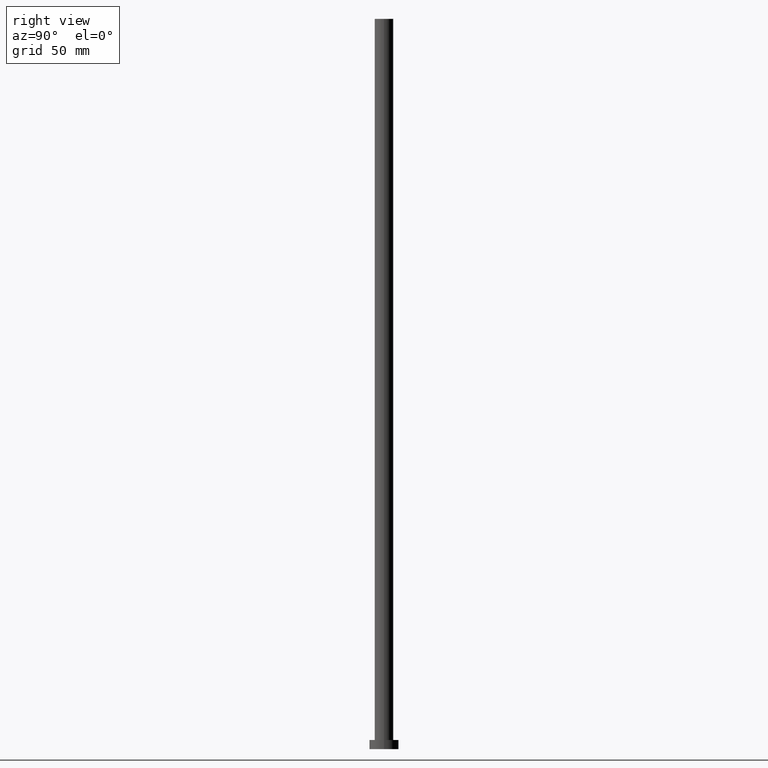
[diagram: clean part render]
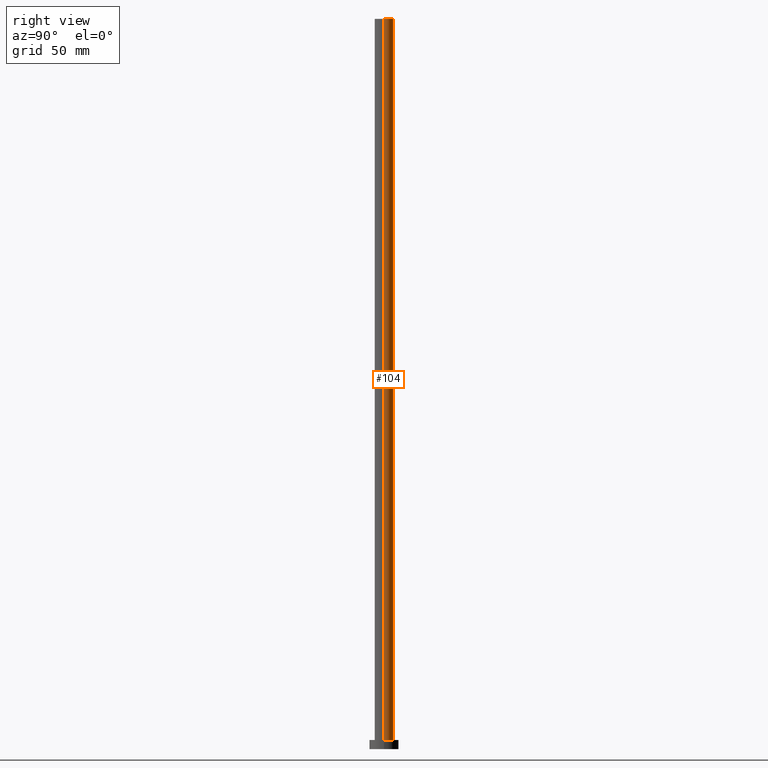
[diagram: same view with one face highlighted and labeled with its STEP entity id]
A machine part, right view. The second image highlights one B-rep face of the part: STEP entity #104.
In plain terms, the highlighted cylindrical surface (edge-blend (fillet) strip) has radius 5.1 mm, axis along (-0, -0, -1).
Its self-contained STEP definition (entity closure, byte-faithful):
#2 = VERTEX_POINT ( 'NONE', #73 ) ;
#5 = EDGE_CURVE ( 'NONE', #110, #81, #79, .T. ) ;
#10 = AXIS2_PLACEMENT_3D ( 'NONE', #214, #153, #137 ) ;
#11 = VECTOR ( 'NONE', #51, 1000.000000000000000 ) ;
#25 = DIRECTION ( 'NONE',  ( 1.000000000000000000, 0.000000000000000000, 0.000000000000000000 ) ) ;
#27 = DIRECTION ( 'NONE',  ( -0.000000000000000000, -0.000000000000000000, -1.000000000000000000 ) ) ;
#33 = CARTESIAN_POINT ( 'NONE',  ( 0.000000000000000000, 0.000000000000000000, 400.0000000000000000 ) ) ;
#46 = ORIENTED_EDGE ( 'NONE', *, *, #254, .T. ) ;
#49 = ORIENTED_EDGE ( 'NONE', *, *, #5, .F. ) ;
#51 = DIRECTION ( 'NONE',  ( -0.000000000000000000, -0.000000000000000000, -1.000000000000000000 ) ) ;
#67 = CYLINDRICAL_SURFACE ( 'NONE', #224, 5.100000000000001421 ) ;
#73 = CARTESIAN_POINT ( 'NONE',  ( 5.100000000000001421, 6.245698675651501825E-16, 5.000000000000000000 ) ) ;
#79 = CIRCLE ( 'NONE', #10, 5.100000000000001421 ) ;
#81 = VERTEX_POINT ( 'NONE', #83 ) ;
#83 = CARTESIAN_POINT ( 'NONE',  ( -5.100000000000001421, 0.000000000000000000, 400.0000000000000000 ) ) ;
#88 = CARTESIAN_POINT ( 'NONE',  ( -5.100000000000001421, 0.000000000000000000, 5.000000000000000000 ) ) ;
#94 = FACE_OUTER_BOUND ( 'NONE', #220, .T. ) ;
#104 = ADVANCED_FACE ( 'NONE', ( #94 ), #67, .T. ) ;
#110 = VERTEX_POINT ( 'NONE', #208 ) ;
#124 = VECTOR ( 'NONE', #188, 1000.000000000000000 ) ;
#127 = VERTEX_POINT ( 'NONE', #88 ) ;
#129 = ORIENTED_EDGE ( 'NONE', *, *, #183, .T. ) ;
#136 = LINE ( 'NONE', #199, #124 ) ;
#137 = DIRECTION ( 'NONE',  ( 1.000000000000000000, 0.000000000000000000, 0.000000000000000000 ) ) ;
#149 = DIRECTION ( 'NONE',  ( -1.000000000000000000, 0.000000000000000000, 0.000000000000000000 ) ) ;
#153 = DIRECTION ( 'NONE',  ( 0.000000000000000000, 0.000000000000000000, 1.000000000000000000 ) ) ;
#154 = CIRCLE ( 'NONE', #222, 5.100000000000001421 ) ;
#163 = DIRECTION ( 'NONE',  ( 0.000000000000000000, 0.000000000000000000, 1.000000000000000000 ) ) ;
#164 = EDGE_CURVE ( 'NONE', #81, #127, #251, .T. ) ;
#165 = ORIENTED_EDGE ( 'NONE', *, *, #164, .F. ) ;
#183 = EDGE_CURVE ( 'NONE', #110, #2, #136, .T. ) ;
#188 = DIRECTION ( 'NONE',  ( -0.000000000000000000, -0.000000000000000000, -1.000000000000000000 ) ) ;
#194 = CARTESIAN_POINT ( 'NONE',  ( -5.100000000000001421, 0.000000000000000000, 400.0000000000000000 ) ) ;
#199 = CARTESIAN_POINT ( 'NONE',  ( 5.100000000000001421, 6.245698675651501825E-16, 400.0000000000000000 ) ) ;
#208 = CARTESIAN_POINT ( 'NONE',  ( 5.100000000000001421, 6.245698675651501825E-16, 400.0000000000000000 ) ) ;
#214 = CARTESIAN_POINT ( 'NONE',  ( 0.000000000000000000, 0.000000000000000000, 400.0000000000000000 ) ) ;
#220 = EDGE_LOOP ( 'NONE', ( #49, #129, #46, #165 ) ) ;
#222 = AXIS2_PLACEMENT_3D ( 'NONE', #226, #163, #25 ) ;
#224 = AXIS2_PLACEMENT_3D ( 'NONE', #33, #27, #149 ) ;
#226 = CARTESIAN_POINT ( 'NONE',  ( 0.000000000000000000, 0.000000000000000000, 5.000000000000000000 ) ) ;
#251 = LINE ( 'NONE', #194, #11 ) ;
#254 = EDGE_CURVE ( 'NONE', #2, #127, #154, .T. ) ;